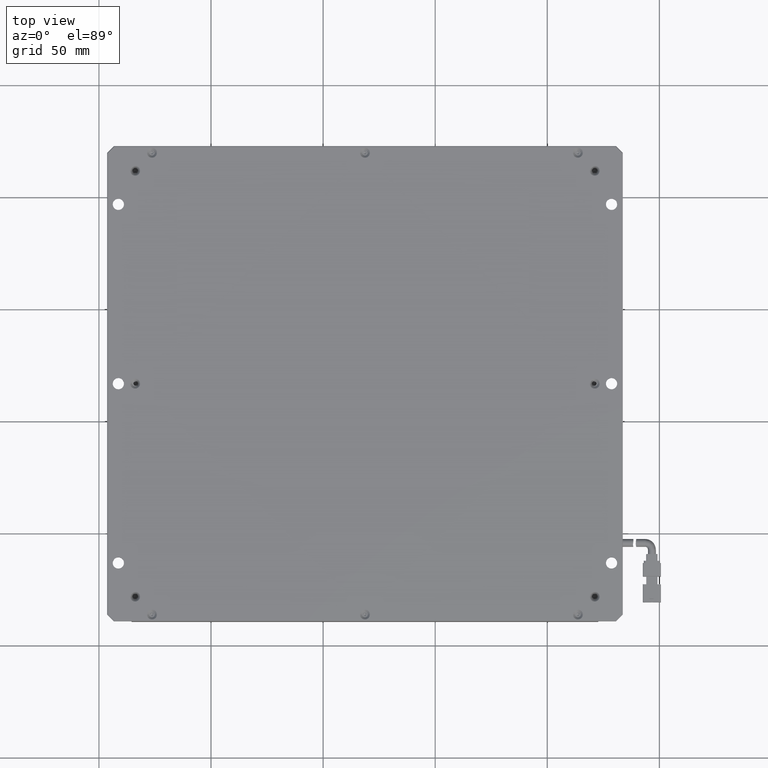
[diagram: clean part render]
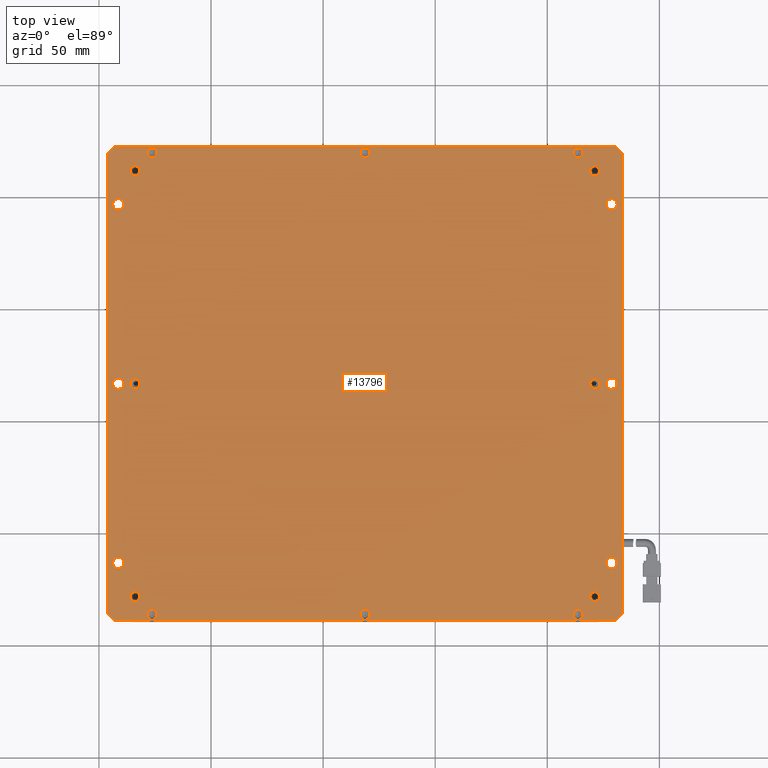
[diagram: same view with one face highlighted and labeled with its STEP entity id]
A machine part, top view. The second image highlights one B-rep face of the part: STEP entity #13796.
In plain terms, the highlighted planar face has unit normal (0, -0, 1).
Its self-contained STEP definition (entity closure, byte-faithful):
#14 = AXIS2_PLACEMENT_3D ( 'NONE', #2653, #14813, #4433 ) ;
#46 = ORIENTED_EDGE ( 'NONE', *, *, #14266, .T. ) ;
#77 = EDGE_CURVE ( 'NONE', #19615, #1174, #9701, .T. ) ;
#100 = CIRCLE ( 'NONE', #12417, 2.199999999932117600 ) ;
#153 = AXIS2_PLACEMENT_3D ( 'NONE', #7839, #7766, #7688 ) ;
#172 = CARTESIAN_POINT ( 'NONE',  ( -93.83424941752387800, 46.62124601721917800, 1.999999999976353100 ) ) ;
#211 = DIRECTION ( 'NONE',  ( 1.000000000000000000, 0.0000000000000000000, 0.0000000000000000000 ) ) ;
#229 = CIRCLE ( 'NONE', #16426, 2.500000000000002200 ) ;
#234 = DIRECTION ( 'NONE',  ( 1.000000000000000000, 0.0000000000000000000, 0.0000000000000000000 ) ) ;
#342 = VERTEX_POINT ( 'NONE', #15956 ) ;
#398 = DIRECTION ( 'NONE',  ( 1.000000000000000000, 0.0000000000000000000, 0.0000000000000000000 ) ) ;
#531 = VERTEX_POINT ( 'NONE', #4546 ) ;
#754 = AXIS2_PLACEMENT_3D ( 'NONE', #12802, #2340, #14496 ) ;
#780 = CARTESIAN_POINT ( 'NONE',  ( -93.20998534881194100, -139.0787539827808200, 1.999999999976353100 ) ) ;
#864 = ORIENTED_EDGE ( 'NONE', *, *, #19874, .T. ) ;
#904 = EDGE_CURVE ( 'NONE', #16083, #11746, #16872, .T. ) ;
#916 = CARTESIAN_POINT ( 'NONE',  ( -91.33424941752387800, 46.62124601721917800, 1.999999999976353100 ) ) ;
#948 = DIRECTION ( 'NONE',  ( 1.000000000000000000, 0.0000000000000000000, 0.0000000000000000000 ) ) ;
#949 = EDGE_CURVE ( 'NONE', #21378, #12270, #17144, .T. ) ;
#1009 = CARTESIAN_POINT ( 'NONE',  ( -93.83424941752386400, -113.3787539827808200, 1.999999999976353100 ) ) ;
#1033 = CIRCLE ( 'NONE', #11498, 2.500000000000002200 ) ;
#1078 = VERTEX_POINT ( 'NONE', #20964 ) ;
#1115 = DIRECTION ( 'NONE',  ( 1.000000000000000000, 0.0000000000000000000, 0.0000000000000000000 ) ) ;
#1174 = VERTEX_POINT ( 'NONE', #8141 ) ;
#1384 = ORIENTED_EDGE ( 'NONE', *, *, #20269, .T. ) ;
#1423 = AXIS2_PLACEMENT_3D ( 'NONE', #9175, #21269, #10944 ) ;
#1436 = CARTESIAN_POINT ( 'NONE',  ( 128.6657505824760500, -113.3787539827808200, 1.999999999976353100 ) ) ;
#1439 = DIRECTION ( 'NONE',  ( 1.000000000000000000, 0.0000000000000000000, 0.0000000000000000000 ) ) ;
#1478 = ORIENTED_EDGE ( 'NONE', *, *, #17349, .F. ) ;
#1583 = AXIS2_PLACEMENT_3D ( 'NONE', #15035, #4664, #16767 ) ;
#1588 = DIRECTION ( 'NONE',  ( 1.000000000000000000, 0.0000000000000000000, 0.0000000000000000000 ) ) ;
#1626 = VECTOR ( 'NONE', #211, 1000.000000000000000 ) ;
#1649 = CIRCLE ( 'NONE', #18263, 2.199999999998023100 ) ;
#1704 = EDGE_CURVE ( 'NONE', #18374, #21837, #9776, .T. ) ;
#1716 = DIRECTION ( 'NONE',  ( 1.000000000000000000, 0.0000000000000000000, 0.0000000000000000000 ) ) ;
#1879 = VERTEX_POINT ( 'NONE', #14879 ) ;
#1975 = DIRECTION ( 'NONE',  ( 1.000000000000000000, 0.0000000000000000000, 0.0000000000000000000 ) ) ;
#1994 = CARTESIAN_POINT ( 'NONE',  ( 133.3657505824760700, 69.49698194850722600, 1.999999999976357100 ) ) ;
#2033 = CARTESIAN_POINT ( 'NONE',  ( 131.1657505824760800, -33.37875398278082900, 1.999999999976353100 ) ) ;
#2053 = DIRECTION ( 'NONE',  ( 0.0000000000000000000, 0.0000000000000000000, -1.000000000000000000 ) ) ;
#2085 = EDGE_CURVE ( 'NONE', #19194, #13583, #1033, .T. ) ;
#2134 = CARTESIAN_POINT ( 'NONE',  ( -91.33424941752386400, -113.3787539827808200, 1.999999999976353100 ) ) ;
#2171 = FACE_BOUND ( 'NONE', #21158, .T. ) ;
#2221 = DIRECTION ( 'NONE',  ( -0.7071067811865473500, 0.7071067811865477900, -1.085800321343646600E-016 ) ) ;
#2263 = ORIENTED_EDGE ( 'NONE', *, *, #11203, .T. ) ;
#2340 = DIRECTION ( 'NONE',  ( -0.0000000000000000000, -0.0000000000000000000, -1.000000000000000000 ) ) ;
#2413 = CARTESIAN_POINT ( 'NONE',  ( 16.46575058245078400, -136.3787539827808600, 1.999999999985902800 ) ) ;
#2453 = CARTESIAN_POINT ( 'NONE',  ( -88.83424941752386400, -33.37875398278082900, 1.999999999976353100 ) ) ;
#2508 = CIRCLE ( 'NONE', #8388, 2.500000000000002200 ) ;
#2511 = VERTEX_POINT ( 'NONE', #19163 ) ;
#2557 = ORIENTED_EDGE ( 'NONE', *, *, #17297, .F. ) ;
#2609 = CARTESIAN_POINT ( 'NONE',  ( 18.66575058247609000, 69.62124601721916400, 1.999999999985902800 ) ) ;
#2634 = DIRECTION ( 'NONE',  ( 1.000000000000000000, 0.0000000000000000000, 0.0000000000000000000 ) ) ;
#2653 = CARTESIAN_POINT ( 'NONE',  ( 113.6657505824761600, -136.3787539827808900, 1.999999999985902800 ) ) ;
#2693 = CARTESIAN_POINT ( 'NONE',  ( -96.03424941752385300, 69.49698194850722600, 1.999999999976348000 ) ) ;
#2694 = FACE_BOUND ( 'NONE', #4130, .T. ) ;
#2746 = CARTESIAN_POINT ( 'NONE',  ( 133.6657505824760800, 72.62124601721916400, 1.999999999976353100 ) ) ;
#2974 = EDGE_CURVE ( 'NONE', #12270, #21378, #22235, .T. ) ;
#2994 = CARTESIAN_POINT ( 'NONE',  ( 130.5414865137641100, 72.32124601721918100, 1.999999999976356700 ) ) ;
#3012 = DIRECTION ( 'NONE',  ( 0.0000000000000000000, 0.0000000000000000000, -1.000000000000000000 ) ) ;
#3064 = VERTEX_POINT ( 'NONE', #3542 ) ;
#3167 = DIRECTION ( 'NONE',  ( 1.000000000000000000, 0.0000000000000000000, 0.0000000000000000000 ) ) ;
#3176 = EDGE_CURVE ( 'NONE', #3619, #4208, #7613, .T. ) ;
#3193 = DIRECTION ( 'NONE',  ( -0.0000000000000000000, 0.0000000000000000000, -1.000000000000000000 ) ) ;
#3224 = ORIENTED_EDGE ( 'NONE', *, *, #21610, .T. ) ;
#3255 = FACE_BOUND ( 'NONE', #20098, .T. ) ;
#3272 = CARTESIAN_POINT ( 'NONE',  ( 113.6657505824760800, 69.62124601721916400, 1.999999999985902800 ) ) ;
#3281 = CARTESIAN_POINT ( 'NONE',  ( 131.1657505824760800, 46.62124601721915000, 1.999999999976353100 ) ) ;
#3295 = ORIENTED_EDGE ( 'NONE', *, *, #18315, .T. ) ;
#3342 = AXIS2_PLACEMENT_3D ( 'NONE', #22360, #12037, #1588 ) ;
#3348 = VECTOR ( 'NONE', #2221, 1000.000000000000000 ) ;
#3465 = CARTESIAN_POINT ( 'NONE',  ( -91.33424941752387800, 46.62124601721917800, 1.999999999976353100 ) ) ;
#3475 = CARTESIAN_POINT ( 'NONE',  ( -83.83424941752387800, -33.37875398278082900, 1.999999999985902800 ) ) ;
#3519 = EDGE_LOOP ( 'NONE', ( #6319, #9598 ) ) ;
#3542 = CARTESIAN_POINT ( 'NONE',  ( -78.53424941752193400, -136.3787539827808100, 1.999999999985902800 ) ) ;
#3571 = CARTESIAN_POINT ( 'NONE',  ( 16.46575058245078400, 69.62124601721916400, 1.999999999985902800 ) ) ;
#3586 = EDGE_LOOP ( 'NONE', ( #2263, #12230 ) ) ;
#3619 = VERTEX_POINT ( 'NONE', #4806 ) ;
#3825 = FACE_BOUND ( 'NONE', #21668, .T. ) ;
#3941 = ORIENTED_EDGE ( 'NONE', *, *, #11718, .F. ) ;
#3958 = CARTESIAN_POINT ( 'NONE',  ( 121.1657505824760500, 61.62124601721919200, 1.999999999929059400 ) ) ;
#4020 = DIRECTION ( 'NONE',  ( 1.000000000000000000, 0.0000000000000000000, 0.0000000000000000000 ) ) ;
#4130 = EDGE_LOOP ( 'NONE', ( #7389, #4661 ) ) ;
#4138 = DIRECTION ( 'NONE',  ( 1.000000000000000000, 0.0000000000000000000, 0.0000000000000000000 ) ) ;
#4185 = AXIS2_PLACEMENT_3D ( 'NONE', #2746, #14891, #4517 ) ;
#4208 = VERTEX_POINT ( 'NONE', #12517 ) ;
#4226 = AXIS2_PLACEMENT_3D ( 'NONE', #13443, #3012, #15140 ) ;
#4289 = EDGE_CURVE ( 'NONE', #17879, #16341, #17853, .T. ) ;
#4433 = DIRECTION ( 'NONE',  ( 1.000000000000000000, 0.0000000000000000000, 0.0000000000000000000 ) ) ;
#4454 = CIRCLE ( 'NONE', #1583, 2.199999999932061600 ) ;
#4471 = EDGE_LOOP ( 'NONE', ( #864, #13146 ) ) ;
#4517 = DIRECTION ( 'NONE',  ( 1.000000000000000000, 0.0000000000000000000, -0.0000000000000000000 ) ) ;
#4546 = CARTESIAN_POINT ( 'NONE',  ( -74.13424941752589300, -136.3787539827808100, 1.999999999985902800 ) ) ;
#4584 = EDGE_CURVE ( 'NONE', #18773, #1078, #229, .T. ) ;
#4661 = ORIENTED_EDGE ( 'NONE', *, *, #17848, .T. ) ;
#4664 = DIRECTION ( 'NONE',  ( -0.0000000000000000000, 0.0000000000000000000, -1.000000000000000000 ) ) ;
#4806 = CARTESIAN_POINT ( 'NONE',  ( 115.8657505824718300, 69.62124601721916400, 1.999999999985902800 ) ) ;
#4919 = CARTESIAN_POINT ( 'NONE',  ( 128.6657505824760500, 46.62124601721915000, 1.999999999976353100 ) ) ;
#5047 = CIRCLE ( 'NONE', #13616, 2.199999999998023100 ) ;
#5235 = DIRECTION ( 'NONE',  ( 1.000000000000000000, 0.0000000000000000000, 0.0000000000000000000 ) ) ;
#5250 = DIRECTION ( 'NONE',  ( 1.000000000000000000, 0.0000000000000000000, 0.0000000000000000000 ) ) ;
#5316 = VERTEX_POINT ( 'NONE', #8973 ) ;
#5319 = ORIENTED_EDGE ( 'NONE', *, *, #2974, .T. ) ;
#5341 = AXIS2_PLACEMENT_3D ( 'NONE', #18571, #8228, #20289 ) ;
#5382 = DIRECTION ( 'NONE',  ( 0.0000000000000000000, 0.0000000000000000000, -1.000000000000000000 ) ) ;
#5384 = VECTOR ( 'NONE', #18094, 1000.000000000000000 ) ;
#5538 = VERTEX_POINT ( 'NONE', #2994 ) ;
#5752 = DIRECTION ( 'NONE',  ( 1.000000000000000000, 0.0000000000000000000, 0.0000000000000000000 ) ) ;
#5781 = CARTESIAN_POINT ( 'NONE',  ( 133.3657505824761200, -136.2544899140688700, 1.999999999976354900 ) ) ;
#5811 = VERTEX_POINT ( 'NONE', #17544 ) ;
#6036 = CARTESIAN_POINT ( 'NONE',  ( 128.6657505824760500, -33.37875398278082900, 1.999999999976353100 ) ) ;
#6108 = ORIENTED_EDGE ( 'NONE', *, *, #13393, .T. ) ;
#6230 = ORIENTED_EDGE ( 'NONE', *, *, #20040, .T. ) ;
#6285 = DIRECTION ( 'NONE',  ( -0.0000000000000000000, 0.0000000000000000000, -1.000000000000000000 ) ) ;
#6319 = ORIENTED_EDGE ( 'NONE', *, *, #1704, .T. ) ;
#6426 = EDGE_CURVE ( 'NONE', #11746, #5538, #21141, .T. ) ;
#6475 = CARTESIAN_POINT ( 'NONE',  ( 111.4657505824804800, -136.3787539827808900, 1.999999999985902800 ) ) ;
#6660 = DIRECTION ( 'NONE',  ( 0.0000000000000000000, 0.0000000000000000000, -1.000000000000000000 ) ) ;
#6686 = DIRECTION ( 'NONE',  ( 1.000000000000000000, 0.0000000000000000000, 0.0000000000000000000 ) ) ;
#6817 = CIRCLE ( 'NONE', #9333, 2.199999999932117600 ) ;
#6833 = FACE_BOUND ( 'NONE', #21112, .T. ) ;
#6905 = CIRCLE ( 'NONE', #3342, 2.200000000025306600 ) ;
#7072 = EDGE_LOOP ( 'NONE', ( #21841, #7525 ) ) ;
#7095 = VERTEX_POINT ( 'NONE', #780 ) ;
#7239 = CARTESIAN_POINT ( 'NONE',  ( -83.83424941752389300, 61.62124601721919200, 1.999999999985902800 ) ) ;
#7253 = VERTEX_POINT ( 'NONE', #10131 ) ;
#7256 = CIRCLE ( 'NONE', #12547, 2.199999999998023100 ) ;
#7337 = CARTESIAN_POINT ( 'NONE',  ( -74.13424941752589300, 69.62124601721916400, 1.999999999985902800 ) ) ;
#7381 = FACE_BOUND ( 'NONE', #21472, .T. ) ;
#7389 = ORIENTED_EDGE ( 'NONE', *, *, #3176, .T. ) ;
#7525 = ORIENTED_EDGE ( 'NONE', *, *, #22385, .T. ) ;
#7529 = EDGE_CURVE ( 'NONE', #21837, #18374, #10350, .T. ) ;
#7531 = CARTESIAN_POINT ( 'NONE',  ( 126.1657505824760600, -33.37875398278082900, 1.999999999976353100 ) ) ;
#7553 = DIRECTION ( 'NONE',  ( -0.0000000000000000000, 0.0000000000000000000, -1.000000000000000000 ) ) ;
#7613 = CIRCLE ( 'NONE', #7740, 2.199999999995760900 ) ;
#7688 = DIRECTION ( 'NONE',  ( 1.000000000000000000, 0.0000000000000000000, 0.0000000000000000000 ) ) ;
#7740 = AXIS2_PLACEMENT_3D ( 'NONE', #3272, #17154, #4020 ) ;
#7766 = DIRECTION ( 'NONE',  ( -0.0000000000000000000, 0.0000000000000000000, -1.000000000000000000 ) ) ;
#7772 = DIRECTION ( 'NONE',  ( 1.000000000000000000, 0.0000000000000000000, 0.0000000000000000000 ) ) ;
#7839 = CARTESIAN_POINT ( 'NONE',  ( 18.66575058247609000, 69.62124601721916400, 1.999999999985902800 ) ) ;
#7854 = DIRECTION ( 'NONE',  ( -0.0000000000000000000, 0.0000000000000000000, -1.000000000000000000 ) ) ;
#7895 = VERTEX_POINT ( 'NONE', #172 ) ;
#7909 = FACE_BOUND ( 'NONE', #3586, .T. ) ;
#7950 = EDGE_LOOP ( 'NONE', ( #12654, #6230 ) ) ;
#8064 = AXIS2_PLACEMENT_3D ( 'NONE', #3475, #15604, #5250 ) ;
#8141 = CARTESIAN_POINT ( 'NONE',  ( 133.3657505824761200, -136.2544899140688400, 1.999999999976360900 ) ) ;
#8177 = EDGE_CURVE ( 'NONE', #1879, #8655, #20294, .T. ) ;
#8209 = VERTEX_POINT ( 'NONE', #11611 ) ;
#8228 = DIRECTION ( 'NONE',  ( -0.0000000000000000000, 0.0000000000000000000, -1.000000000000000000 ) ) ;
#8232 = LINE ( 'NONE', #9837, #12863 ) ;
#8264 = LINE ( 'NONE', #5781, #12895 ) ;
#8383 = DIRECTION ( 'NONE',  ( -0.0000000000000000000, 0.0000000000000000000, -1.000000000000000000 ) ) ;
#8388 = AXIS2_PLACEMENT_3D ( 'NONE', #916, #13100, #2634 ) ;
#8401 = ORIENTED_EDGE ( 'NONE', *, *, #16135, .T. ) ;
#8537 = ORIENTED_EDGE ( 'NONE', *, *, #4584, .T. ) ;
#8567 = ORIENTED_EDGE ( 'NONE', *, *, #17482, .F. ) ;
#8655 = VERTEX_POINT ( 'NONE', #9756 ) ;
#8674 = CARTESIAN_POINT ( 'NONE',  ( -76.33424941752390700, -136.3787539827808100, 1.999999999985902800 ) ) ;
#8794 = EDGE_LOOP ( 'NONE', ( #17607, #1384 ) ) ;
#8887 = CARTESIAN_POINT ( 'NONE',  ( 121.1657505824760500, 61.62124601721919200, 1.999999999929059400 ) ) ;
#8898 = DIRECTION ( 'NONE',  ( 1.000000000000000000, 0.0000000000000000000, 0.0000000000000000000 ) ) ;
#8961 = DIRECTION ( 'NONE',  ( 1.000000000000000000, 0.0000000000000000000, 0.0000000000000000000 ) ) ;
#8973 = CARTESIAN_POINT ( 'NONE',  ( -88.83424941752387800, 46.62124601721917800, 1.999999999976353100 ) ) ;
#8987 = AXIS2_PLACEMENT_3D ( 'NONE', #4919, #17028, #6686 ) ;
#9000 = VERTEX_POINT ( 'NONE', #14277 ) ;
#9175 = CARTESIAN_POINT ( 'NONE',  ( -91.33424941752386400, -33.37875398278082900, 1.999999999976353100 ) ) ;
#9333 = AXIS2_PLACEMENT_3D ( 'NONE', #8887, #20986, #10659 ) ;
#9448 = EDGE_CURVE ( 'NONE', #21160, #2511, #11863, .T. ) ;
#9463 = CARTESIAN_POINT ( 'NONE',  ( -76.33424941752390700, 69.62124601721916400, 1.999999999985902800 ) ) ;
#9491 = CARTESIAN_POINT ( 'NONE',  ( -93.20998534881192700, 72.32124601721918100, 1.999999999976346300 ) ) ;
#9598 = ORIENTED_EDGE ( 'NONE', *, *, #7529, .T. ) ;
#9701 = LINE ( 'NONE', #14447, #21331 ) ;
#9756 = CARTESIAN_POINT ( 'NONE',  ( 118.9657505825440500, -128.3787539827808100, 1.999999999929059400 ) ) ;
#9776 = CIRCLE ( 'NONE', #12812, 2.500000000000002200 ) ;
#9837 = CARTESIAN_POINT ( 'NONE',  ( 130.5414865137641100, 72.32124601721918100, 1.999999999976367800 ) ) ;
#9891 = AXIS2_PLACEMENT_3D ( 'NONE', #7239, #19312, #8961 ) ;
#10027 = CIRCLE ( 'NONE', #10793, 2.199999999995677400 ) ;
#10131 = CARTESIAN_POINT ( 'NONE',  ( 123.3657505824081700, 61.62124601721919200, 1.999999999929059400 ) ) ;
#10162 = AXIS2_PLACEMENT_3D ( 'NONE', #3465, #15592, #5235 ) ;
#10195 = VERTEX_POINT ( 'NONE', #7337 ) ;
#10350 = CIRCLE ( 'NONE', #14708, 2.500000000000002200 ) ;
#10367 = CIRCLE ( 'NONE', #754, 2.199999999995760900 ) ;
#10437 = ORIENTED_EDGE ( 'NONE', *, *, #6426, .F. ) ;
#10438 = DIRECTION ( 'NONE',  ( 1.000000000000000000, 0.0000000000000000000, 0.0000000000000000000 ) ) ;
#10492 = CIRCLE ( 'NONE', #15663, 2.500000000000002200 ) ;
#10561 = EDGE_CURVE ( 'NONE', #2511, #21160, #11852, .T. ) ;
#10647 = DIRECTION ( 'NONE',  ( -0.0000000000000000000, 0.0000000000000000000, -1.000000000000000000 ) ) ;
#10659 = DIRECTION ( 'NONE',  ( 1.000000000000000000, 0.0000000000000000000, 0.0000000000000000000 ) ) ;
#10684 = EDGE_CURVE ( 'NONE', #13583, #19194, #11831, .T. ) ;
#10793 = AXIS2_PLACEMENT_3D ( 'NONE', #21137, #10818, #398 ) ;
#10818 = DIRECTION ( 'NONE',  ( -0.0000000000000000000, -0.0000000000000000000, -1.000000000000000000 ) ) ;
#10905 = FACE_OUTER_BOUND ( 'NONE', #18973, .T. ) ;
#10921 = VECTOR ( 'NONE', #21815, 1000.000000000000000 ) ;
#10944 = DIRECTION ( 'NONE',  ( 1.000000000000000000, 0.0000000000000000000, 0.0000000000000000000 ) ) ;
#11039 = CIRCLE ( 'NONE', #21696, 2.200000000061652600 ) ;
#11134 = DIRECTION ( 'NONE',  ( -0.7071067811865526800, -0.7071067811865422400, 1.737280514149831800E-015 ) ) ;
#11203 = EDGE_CURVE ( 'NONE', #342, #16627, #13402, .T. ) ;
#11218 = ORIENTED_EDGE ( 'NONE', *, *, #18242, .T. ) ;
#11223 = DIRECTION ( 'NONE',  ( 1.000000000000000000, 0.0000000000000000000, 0.0000000000000000000 ) ) ;
#11388 = DIRECTION ( 'NONE',  ( 0.0000000000000000000, 0.0000000000000000000, -1.000000000000000000 ) ) ;
#11450 = FACE_BOUND ( 'NONE', #8794, .T. ) ;
#11465 = LINE ( 'NONE', #11473, #10921 ) ;
#11473 = CARTESIAN_POINT ( 'NONE',  ( -96.03424941752389500, 72.62124601721916400, 1.999999999976353100 ) ) ;
#11498 = AXIS2_PLACEMENT_3D ( 'NONE', #2134, #2053, #1975 ) ;
#11533 = DIRECTION ( 'NONE',  ( -0.0000000000000000000, 0.0000000000000000000, -1.000000000000000000 ) ) ;
#11597 = EDGE_CURVE ( 'NONE', #16627, #342, #10027, .T. ) ;
#11611 = CARTESIAN_POINT ( 'NONE',  ( 130.5414865137641700, -139.0787539827808200, 1.999999999976354900 ) ) ;
#11718 = EDGE_CURVE ( 'NONE', #8209, #7095, #19182, .T. ) ;
#11746 = VERTEX_POINT ( 'NONE', #9491 ) ;
#11831 = CIRCLE ( 'NONE', #15220, 2.500000000000002200 ) ;
#11852 = CIRCLE ( 'NONE', #9891, 2.200000000061666400 ) ;
#11863 = CIRCLE ( 'NONE', #14476, 2.200000000061666400 ) ;
#11876 = DIRECTION ( 'NONE',  ( -0.0000000000000000000, 0.0000000000000000000, -1.000000000000000000 ) ) ;
#11907 = EDGE_LOOP ( 'NONE', ( #18608, #21884 ) ) ;
#12006 = FACE_BOUND ( 'NONE', #13647, .T. ) ;
#12037 = DIRECTION ( 'NONE',  ( -0.0000000000000000000, 0.0000000000000000000, -1.000000000000000000 ) ) ;
#12153 = CARTESIAN_POINT ( 'NONE',  ( 118.9657505825440500, -33.37875398278082900, 1.999999999929059400 ) ) ;
#12167 = DIRECTION ( 'NONE',  ( -0.0000000000000000000, 0.0000000000000000000, -1.000000000000000000 ) ) ;
#12172 = ORIENTED_EDGE ( 'NONE', *, *, #12525, .T. ) ;
#12181 = EDGE_CURVE ( 'NONE', #3064, #531, #5047, .T. ) ;
#12230 = ORIENTED_EDGE ( 'NONE', *, *, #11597, .T. ) ;
#12270 = VERTEX_POINT ( 'NONE', #3571 ) ;
#12281 = ORIENTED_EDGE ( 'NONE', *, *, #10684, .T. ) ;
#12332 = VECTOR ( 'NONE', #22263, 1000.000000000000100 ) ;
#12380 = CARTESIAN_POINT ( 'NONE',  ( 133.6657505824760800, 72.32124601721918100, 1.999999999976353100 ) ) ;
#12417 = AXIS2_PLACEMENT_3D ( 'NONE', #3958, #16072, #5752 ) ;
#12517 = CARTESIAN_POINT ( 'NONE',  ( 111.4657505824803100, 69.62124601721916400, 1.999999999985902800 ) ) ;
#12525 = EDGE_CURVE ( 'NONE', #18887, #21256, #19354, .T. ) ;
#12547 = AXIS2_PLACEMENT_3D ( 'NONE', #8674, #20752, #10438 ) ;
#12552 = ORIENTED_EDGE ( 'NONE', *, *, #14732, .T. ) ;
#12561 = FACE_BOUND ( 'NONE', #11907, .T. ) ;
#12632 = LINE ( 'NONE', #12682, #3348 ) ;
#12654 = ORIENTED_EDGE ( 'NONE', *, *, #19315, .T. ) ;
#12682 = CARTESIAN_POINT ( 'NONE',  ( -93.20998534881194100, -139.0787539827808200, 1.999999999976352700 ) ) ;
#12714 = EDGE_LOOP ( 'NONE', ( #14557, #12172 ) ) ;
#12717 = CARTESIAN_POINT ( 'NONE',  ( 20.86575058250139800, -136.3787539827808600, 1.999999999985902800 ) ) ;
#12802 = CARTESIAN_POINT ( 'NONE',  ( 113.6657505824760800, 69.62124601721916400, 1.999999999985902800 ) ) ;
#12812 = AXIS2_PLACEMENT_3D ( 'NONE', #13691, #19941, #8898 ) ;
#12849 = AXIS2_PLACEMENT_3D ( 'NONE', #2609, #13291, #4138 ) ;
#12863 = VECTOR ( 'NONE', #21930, 1000.000000000000100 ) ;
#12895 = VECTOR ( 'NONE', #11134, 1000.000000000000100 ) ;
#12983 = VERTEX_POINT ( 'NONE', #2453 ) ;
#13100 = DIRECTION ( 'NONE',  ( 0.0000000000000000000, 0.0000000000000000000, -1.000000000000000000 ) ) ;
#13126 = EDGE_LOOP ( 'NONE', ( #3295, #11218 ) ) ;
#13146 = ORIENTED_EDGE ( 'NONE', *, *, #13482, .T. ) ;
#13290 = CARTESIAN_POINT ( 'NONE',  ( -78.53424941752193400, 69.62124601721916400, 1.999999999985902800 ) ) ;
#13291 = DIRECTION ( 'NONE',  ( -0.0000000000000000000, 0.0000000000000000000, -1.000000000000000000 ) ) ;
#13294 = EDGE_CURVE ( 'NONE', #15438, #16083, #11465, .T. ) ;
#13306 = VERTEX_POINT ( 'NONE', #13290 ) ;
#13393 = EDGE_CURVE ( 'NONE', #15020, #20668, #16827, .T. ) ;
#13402 = CIRCLE ( 'NONE', #14, 2.199999999995677400 ) ;
#13443 = CARTESIAN_POINT ( 'NONE',  ( 128.6657505824760500, -113.3787539827808200, 1.999999999976353100 ) ) ;
#13482 = EDGE_CURVE ( 'NONE', #7895, #5316, #20338, .T. ) ;
#13583 = VERTEX_POINT ( 'NONE', #14093 ) ;
#13602 = DIRECTION ( 'NONE',  ( 0.0000000000000000000, 0.0000000000000000000, -1.000000000000000000 ) ) ;
#13616 = AXIS2_PLACEMENT_3D ( 'NONE', #13622, #3193, #15306 ) ;
#13622 = CARTESIAN_POINT ( 'NONE',  ( -76.33424941752390700, -136.3787539827808100, 1.999999999985902800 ) ) ;
#13647 = EDGE_LOOP ( 'NONE', ( #20350, #18228 ) ) ;
#13691 = CARTESIAN_POINT ( 'NONE',  ( 128.6657505824760500, -33.37875398278082900, 1.999999999976353100 ) ) ;
#13796 = ADVANCED_FACE ( 'NONE', ( #12561, #17635, #22252, #7909, #3825, #3255, #21153, #16544, #12006, #7381, #2694, #20601, #16018, #11450, #6833, #2171, #20063, #15455, #10905 ), #18284, .T. ) ;
#13828 = CIRCLE ( 'NONE', #17320, 2.200000000061652600 ) ;
#13902 = EDGE_CURVE ( 'NONE', #12983, #16424, #22233, .T. ) ;
#14093 = CARTESIAN_POINT ( 'NONE',  ( -88.83424941752386400, -113.3787539827808200, 1.999999999976353100 ) ) ;
#14137 = CARTESIAN_POINT ( 'NONE',  ( 123.3657505824081700, -33.37875398278082900, 1.999999999929059400 ) ) ;
#14194 = ORIENTED_EDGE ( 'NONE', *, *, #12181, .T. ) ;
#14266 = EDGE_CURVE ( 'NONE', #10195, #13306, #20111, .T. ) ;
#14277 = CARTESIAN_POINT ( 'NONE',  ( -81.63424941746222900, -128.3787539827808100, 1.999999999985902800 ) ) ;
#14447 = CARTESIAN_POINT ( 'NONE',  ( 133.3657505824760700, 72.62124601721916400, 1.999999999976353600 ) ) ;
#14476 = AXIS2_PLACEMENT_3D ( 'NONE', #22491, #12167, #1716 ) ;
#14496 = DIRECTION ( 'NONE',  ( 1.000000000000000000, 0.0000000000000000000, 0.0000000000000000000 ) ) ;
#14557 = ORIENTED_EDGE ( 'NONE', *, *, #20997, .T. ) ;
#14629 = CARTESIAN_POINT ( 'NONE',  ( -93.83424941752386400, -33.37875398278082900, 1.999999999976353100 ) ) ;
#14708 = AXIS2_PLACEMENT_3D ( 'NONE', #6036, #18097, #7772 ) ;
#14732 = EDGE_CURVE ( 'NONE', #13306, #10195, #1649, .T. ) ;
#14736 = EDGE_LOOP ( 'NONE', ( #17741, #5319 ) ) ;
#14813 = DIRECTION ( 'NONE',  ( -0.0000000000000000000, -0.0000000000000000000, -1.000000000000000000 ) ) ;
#14879 = CARTESIAN_POINT ( 'NONE',  ( 123.3657505824081700, -128.3787539827808100, 1.999999999929059400 ) ) ;
#14891 = DIRECTION ( 'NONE',  ( 0.0000000000000000000, -0.0000000000000000000, 1.000000000000000000 ) ) ;
#14957 = VERTEX_POINT ( 'NONE', #15182 ) ;
#15020 = VERTEX_POINT ( 'NONE', #3281 ) ;
#15035 = CARTESIAN_POINT ( 'NONE',  ( 121.1657505824761100, -33.37875398278082900, 1.999999999929059400 ) ) ;
#15140 = DIRECTION ( 'NONE',  ( 1.000000000000000000, 0.0000000000000000000, 0.0000000000000000000 ) ) ;
#15182 = CARTESIAN_POINT ( 'NONE',  ( 118.9657505825439300, 61.62124601721919200, 1.999999999929059400 ) ) ;
#15220 = AXIS2_PLACEMENT_3D ( 'NONE', #21717, #11388, #948 ) ;
#15283 = ORIENTED_EDGE ( 'NONE', *, *, #2085, .T. ) ;
#15306 = DIRECTION ( 'NONE',  ( 1.000000000000000000, 0.0000000000000000000, 0.0000000000000000000 ) ) ;
#15438 = VERTEX_POINT ( 'NONE', #22141 ) ;
#15455 = FACE_BOUND ( 'NONE', #17372, .T. ) ;
#15592 = DIRECTION ( 'NONE',  ( 0.0000000000000000000, 0.0000000000000000000, -1.000000000000000000 ) ) ;
#15604 = DIRECTION ( 'NONE',  ( -0.0000000000000000000, 0.0000000000000000000, -1.000000000000000000 ) ) ;
#15663 = AXIS2_PLACEMENT_3D ( 'NONE', #15734, #5382, #17481 ) ;
#15734 = CARTESIAN_POINT ( 'NONE',  ( 128.6657505824760500, 46.62124601721915000, 1.999999999976353100 ) ) ;
#15845 = ORIENTED_EDGE ( 'NONE', *, *, #16614, .T. ) ;
#15860 = ORIENTED_EDGE ( 'NONE', *, *, #904, .F. ) ;
#15956 = CARTESIAN_POINT ( 'NONE',  ( 115.8657505824718300, -136.3787539827808900, 1.999999999985902800 ) ) ;
#15968 = AXIS2_PLACEMENT_3D ( 'NONE', #16612, #6285, #18350 ) ;
#16018 = FACE_BOUND ( 'NONE', #4471, .T. ) ;
#16047 = AXIS2_PLACEMENT_3D ( 'NONE', #22205, #11876, #1439 ) ;
#16072 = DIRECTION ( 'NONE',  ( -0.0000000000000000000, 0.0000000000000000000, -1.000000000000000000 ) ) ;
#16083 = VERTEX_POINT ( 'NONE', #22369 ) ;
#16135 = EDGE_CURVE ( 'NONE', #531, #3064, #7256, .T. ) ;
#16216 = CARTESIAN_POINT ( 'NONE',  ( 20.86575058250139800, 69.62124601721916400, 1.999999999985902800 ) ) ;
#16335 = CIRCLE ( 'NONE', #1423, 2.500000000000002200 ) ;
#16338 = DIRECTION ( 'NONE',  ( 1.347358039593765400E-016, -1.000000000000000000, 1.347358039593637200E-016 ) ) ;
#16341 = VERTEX_POINT ( 'NONE', #12717 ) ;
#16358 = CARTESIAN_POINT ( 'NONE',  ( 133.6657505824760800, -139.0787539827808200, 1.999999999976352700 ) ) ;
#16424 = VERTEX_POINT ( 'NONE', #14629 ) ;
#16426 = AXIS2_PLACEMENT_3D ( 'NONE', #1436, #13602, #3167 ) ;
#16544 = FACE_BOUND ( 'NONE', #13126, .T. ) ;
#16612 = CARTESIAN_POINT ( 'NONE',  ( 121.1657505824761100, -128.3787539827808100, 1.999999999929059400 ) ) ;
#16614 = EDGE_CURVE ( 'NONE', #1078, #18773, #18010, .T. ) ;
#16627 = VERTEX_POINT ( 'NONE', #6475 ) ;
#16646 = ORIENTED_EDGE ( 'NONE', *, *, #77, .F. ) ;
#16767 = DIRECTION ( 'NONE',  ( 1.000000000000000000, 0.0000000000000000000, 0.0000000000000000000 ) ) ;
#16827 = CIRCLE ( 'NONE', #8987, 2.500000000000002200 ) ;
#16872 = LINE ( 'NONE', #2693, #12332 ) ;
#17002 = CARTESIAN_POINT ( 'NONE',  ( -91.33424941752386400, -33.37875398278082900, 1.999999999976353100 ) ) ;
#17028 = DIRECTION ( 'NONE',  ( 0.0000000000000000000, 0.0000000000000000000, -1.000000000000000000 ) ) ;
#17144 = CIRCLE ( 'NONE', #153, 2.200000000025306600 ) ;
#17154 = DIRECTION ( 'NONE',  ( -0.0000000000000000000, -0.0000000000000000000, -1.000000000000000000 ) ) ;
#17297 = EDGE_CURVE ( 'NONE', #7095, #15438, #12632, .T. ) ;
#17304 = AXIS2_PLACEMENT_3D ( 'NONE', #17882, #7553, #19634 ) ;
#17320 = AXIS2_PLACEMENT_3D ( 'NONE', #20972, #10647, #234 ) ;
#17323 = CARTESIAN_POINT ( 'NONE',  ( 126.1657505824760600, 46.62124601721915000, 1.999999999976353100 ) ) ;
#17349 = EDGE_CURVE ( 'NONE', #1174, #8209, #8264, .T. ) ;
#17372 = EDGE_LOOP ( 'NONE', ( #6108, #21791 ) ) ;
#17481 = DIRECTION ( 'NONE',  ( 1.000000000000000000, 0.0000000000000000000, 0.0000000000000000000 ) ) ;
#17482 = EDGE_CURVE ( 'NONE', #5538, #19615, #8232, .T. ) ;
#17544 = CARTESIAN_POINT ( 'NONE',  ( -86.03424941758552800, -33.37875398278082900, 1.999999999985902800 ) ) ;
#17607 = ORIENTED_EDGE ( 'NONE', *, *, #13902, .T. ) ;
#17610 = AXIS2_PLACEMENT_3D ( 'NONE', #21867, #11533, #1115 ) ;
#17635 = FACE_BOUND ( 'NONE', #12714, .T. ) ;
#17741 = ORIENTED_EDGE ( 'NONE', *, *, #949, .T. ) ;
#17848 = EDGE_CURVE ( 'NONE', #4208, #3619, #10367, .T. ) ;
#17853 = CIRCLE ( 'NONE', #17304, 2.200000000025306600 ) ;
#17879 = VERTEX_POINT ( 'NONE', #2413 ) ;
#17882 = CARTESIAN_POINT ( 'NONE',  ( 18.66575058247609000, -136.3787539827808600, 1.999999999985902800 ) ) ;
#18010 = CIRCLE ( 'NONE', #4226, 2.500000000000002200 ) ;
#18073 = VERTEX_POINT ( 'NONE', #20214 ) ;
#18094 = DIRECTION ( 'NONE',  ( -1.000000000000000000, -0.0000000000000000000, -0.0000000000000000000 ) ) ;
#18097 = DIRECTION ( 'NONE',  ( 0.0000000000000000000, 0.0000000000000000000, -1.000000000000000000 ) ) ;
#18185 = CARTESIAN_POINT ( 'NONE',  ( -76.33424941752390700, 69.62124601721916400, 1.999999999985902800 ) ) ;
#18228 = ORIENTED_EDGE ( 'NONE', *, *, #9448, .T. ) ;
#18241 = VERTEX_POINT ( 'NONE', #19009 ) ;
#18242 = EDGE_CURVE ( 'NONE', #5811, #18241, #20562, .T. ) ;
#18263 = AXIS2_PLACEMENT_3D ( 'NONE', #9463, #21550, #11223 ) ;
#18284 = PLANE ( 'NONE',  #4185 ) ;
#18310 = ORIENTED_EDGE ( 'NONE', *, *, #13294, .F. ) ;
#18315 = EDGE_CURVE ( 'NONE', #18241, #5811, #13828, .T. ) ;
#18350 = DIRECTION ( 'NONE',  ( 1.000000000000000000, 0.0000000000000000000, 0.0000000000000000000 ) ) ;
#18374 = VERTEX_POINT ( 'NONE', #2033 ) ;
#18571 = CARTESIAN_POINT ( 'NONE',  ( 121.1657505824761100, -33.37875398278082900, 1.999999999929059400 ) ) ;
#18608 = ORIENTED_EDGE ( 'NONE', *, *, #8177, .T. ) ;
#18687 = CARTESIAN_POINT ( 'NONE',  ( 131.1657505824760800, -113.3787539827808200, 1.999999999976353100 ) ) ;
#18732 = CARTESIAN_POINT ( 'NONE',  ( -83.83424941752387800, -128.3787539827808100, 1.999999999985902800 ) ) ;
#18743 = DIRECTION ( 'NONE',  ( 1.000000000000000000, 0.0000000000000000000, 0.0000000000000000000 ) ) ;
#18773 = VERTEX_POINT ( 'NONE', #18687 ) ;
#18887 = VERTEX_POINT ( 'NONE', #12153 ) ;
#18973 = EDGE_LOOP ( 'NONE', ( #3941, #1478, #16646, #8567, #10437, #15860, #18310, #2557 ) ) ;
#19009 = CARTESIAN_POINT ( 'NONE',  ( -81.63424941746222900, -33.37875398278082900, 1.999999999985902800 ) ) ;
#19163 = CARTESIAN_POINT ( 'NONE',  ( -81.63424941746222900, 61.62124601721919200, 1.999999999985902800 ) ) ;
#19182 = LINE ( 'NONE', #16358, #5384 ) ;
#19194 = VERTEX_POINT ( 'NONE', #1009 ) ;
#19280 = AXIS2_PLACEMENT_3D ( 'NONE', #17002, #6660, #18743 ) ;
#19312 = DIRECTION ( 'NONE',  ( -0.0000000000000000000, 0.0000000000000000000, -1.000000000000000000 ) ) ;
#19315 = EDGE_CURVE ( 'NONE', #9000, #18073, #11039, .T. ) ;
#19354 = CIRCLE ( 'NONE', #5341, 2.199999999932061600 ) ;
#19615 = VERTEX_POINT ( 'NONE', #1994 ) ;
#19634 = DIRECTION ( 'NONE',  ( 1.000000000000000000, 0.0000000000000000000, 0.0000000000000000000 ) ) ;
#19852 = CIRCLE ( 'NONE', #16047, 2.200000000061652600 ) ;
#19874 = EDGE_CURVE ( 'NONE', #5316, #7895, #2508, .T. ) ;
#19929 = DIRECTION ( 'NONE',  ( 1.000000000000000000, 0.0000000000000000000, 0.0000000000000000000 ) ) ;
#19941 = DIRECTION ( 'NONE',  ( 0.0000000000000000000, 0.0000000000000000000, -1.000000000000000000 ) ) ;
#20040 = EDGE_CURVE ( 'NONE', #18073, #9000, #19852, .T. ) ;
#20063 = FACE_BOUND ( 'NONE', #3519, .T. ) ;
#20098 = EDGE_LOOP ( 'NONE', ( #8401, #14194 ) ) ;
#20111 = CIRCLE ( 'NONE', #21901, 2.199999999998023100 ) ;
#20214 = CARTESIAN_POINT ( 'NONE',  ( -86.03424941758552800, -128.3787539827808100, 1.999999999985902800 ) ) ;
#20269 = EDGE_CURVE ( 'NONE', #16424, #12983, #16335, .T. ) ;
#20289 = DIRECTION ( 'NONE',  ( 1.000000000000000000, 0.0000000000000000000, 0.0000000000000000000 ) ) ;
#20294 = CIRCLE ( 'NONE', #17610, 2.199999999932061600 ) ;
#20338 = CIRCLE ( 'NONE', #10162, 2.500000000000002200 ) ;
#20350 = ORIENTED_EDGE ( 'NONE', *, *, #10561, .T. ) ;
#20421 = CIRCLE ( 'NONE', #15968, 2.199999999932061600 ) ;
#20449 = DIRECTION ( 'NONE',  ( 1.000000000000000000, 0.0000000000000000000, 0.0000000000000000000 ) ) ;
#20562 = CIRCLE ( 'NONE', #8064, 2.200000000061652600 ) ;
#20601 = FACE_BOUND ( 'NONE', #14736, .T. ) ;
#20632 = ORIENTED_EDGE ( 'NONE', *, *, #4289, .T. ) ;
#20668 = VERTEX_POINT ( 'NONE', #17323 ) ;
#20679 = EDGE_CURVE ( 'NONE', #20668, #15020, #10492, .T. ) ;
#20683 = CARTESIAN_POINT ( 'NONE',  ( -86.03424941758555600, 61.62124601721919200, 1.999999999985902800 ) ) ;
#20752 = DIRECTION ( 'NONE',  ( -0.0000000000000000000, 0.0000000000000000000, -1.000000000000000000 ) ) ;
#20962 = EDGE_CURVE ( 'NONE', #8655, #1879, #20421, .T. ) ;
#20964 = CARTESIAN_POINT ( 'NONE',  ( 126.1657505824760600, -113.3787539827808200, 1.999999999976353100 ) ) ;
#20972 = CARTESIAN_POINT ( 'NONE',  ( -83.83424941752387800, -33.37875398278082900, 1.999999999985902800 ) ) ;
#20986 = DIRECTION ( 'NONE',  ( -0.0000000000000000000, 0.0000000000000000000, -1.000000000000000000 ) ) ;
#20997 = EDGE_CURVE ( 'NONE', #21256, #18887, #4454, .T. ) ;
#21112 = EDGE_LOOP ( 'NONE', ( #12281, #15283 ) ) ;
#21137 = CARTESIAN_POINT ( 'NONE',  ( 113.6657505824761600, -136.3787539827808900, 1.999999999985902800 ) ) ;
#21141 = LINE ( 'NONE', #12380, #1626 ) ;
#21153 = FACE_BOUND ( 'NONE', #7950, .T. ) ;
#21158 = EDGE_LOOP ( 'NONE', ( #8537, #15845 ) ) ;
#21160 = VERTEX_POINT ( 'NONE', #20683 ) ;
#21256 = VERTEX_POINT ( 'NONE', #14137 ) ;
#21269 = DIRECTION ( 'NONE',  ( 0.0000000000000000000, 0.0000000000000000000, -1.000000000000000000 ) ) ;
#21331 = VECTOR ( 'NONE', #16338, 1000.000000000000000 ) ;
#21333 = EDGE_CURVE ( 'NONE', #7253, #14957, #100, .T. ) ;
#21378 = VERTEX_POINT ( 'NONE', #16216 ) ;
#21472 = EDGE_LOOP ( 'NONE', ( #46, #12552 ) ) ;
#21550 = DIRECTION ( 'NONE',  ( -0.0000000000000000000, 0.0000000000000000000, -1.000000000000000000 ) ) ;
#21610 = EDGE_CURVE ( 'NONE', #16341, #17879, #6905, .T. ) ;
#21668 = EDGE_LOOP ( 'NONE', ( #3224, #20632 ) ) ;
#21696 = AXIS2_PLACEMENT_3D ( 'NONE', #18732, #8383, #20449 ) ;
#21717 = CARTESIAN_POINT ( 'NONE',  ( -91.33424941752386400, -113.3787539827808200, 1.999999999976353100 ) ) ;
#21791 = ORIENTED_EDGE ( 'NONE', *, *, #20679, .T. ) ;
#21815 = DIRECTION ( 'NONE',  ( -0.0000000000000000000, 1.000000000000000000, 0.0000000000000000000 ) ) ;
#21837 = VERTEX_POINT ( 'NONE', #7531 ) ;
#21841 = ORIENTED_EDGE ( 'NONE', *, *, #21333, .T. ) ;
#21867 = CARTESIAN_POINT ( 'NONE',  ( 121.1657505824761100, -128.3787539827808100, 1.999999999929059400 ) ) ;
#21884 = ORIENTED_EDGE ( 'NONE', *, *, #20962, .T. ) ;
#21901 = AXIS2_PLACEMENT_3D ( 'NONE', #18185, #7854, #19929 ) ;
#21930 = DIRECTION ( 'NONE',  ( 0.7071067811865474600, -0.7071067811865474600, -1.085800321343647500E-016 ) ) ;
#22141 = CARTESIAN_POINT ( 'NONE',  ( -96.03424941752389500, -136.2544899140688400, 1.999999999976353100 ) ) ;
#22205 = CARTESIAN_POINT ( 'NONE',  ( -83.83424941752387800, -128.3787539827808100, 1.999999999985902800 ) ) ;
#22233 = CIRCLE ( 'NONE', #19280, 2.500000000000002200 ) ;
#22235 = CIRCLE ( 'NONE', #12849, 2.200000000025306600 ) ;
#22252 = FACE_BOUND ( 'NONE', #7072, .T. ) ;
#22263 = DIRECTION ( 'NONE',  ( 0.7071067811865422400, 0.7071067811865526800, -1.737280514149848800E-015 ) ) ;
#22360 = CARTESIAN_POINT ( 'NONE',  ( 18.66575058247609000, -136.3787539827808600, 1.999999999985902800 ) ) ;
#22369 = CARTESIAN_POINT ( 'NONE',  ( -96.03424941752388100, 69.49698194850722600, 1.999999999976351800 ) ) ;
#22385 = EDGE_CURVE ( 'NONE', #14957, #7253, #6817, .T. ) ;
#22491 = CARTESIAN_POINT ( 'NONE',  ( -83.83424941752389300, 61.62124601721919200, 1.999999999985902800 ) ) ;